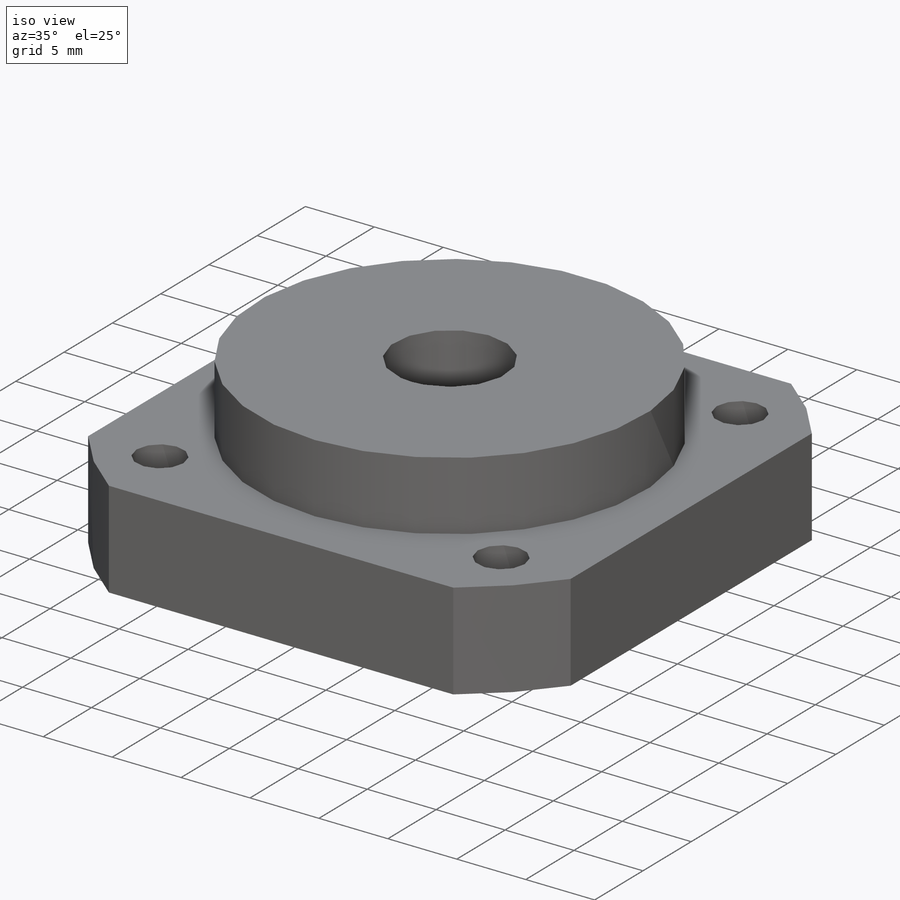
[diagram: iso view]
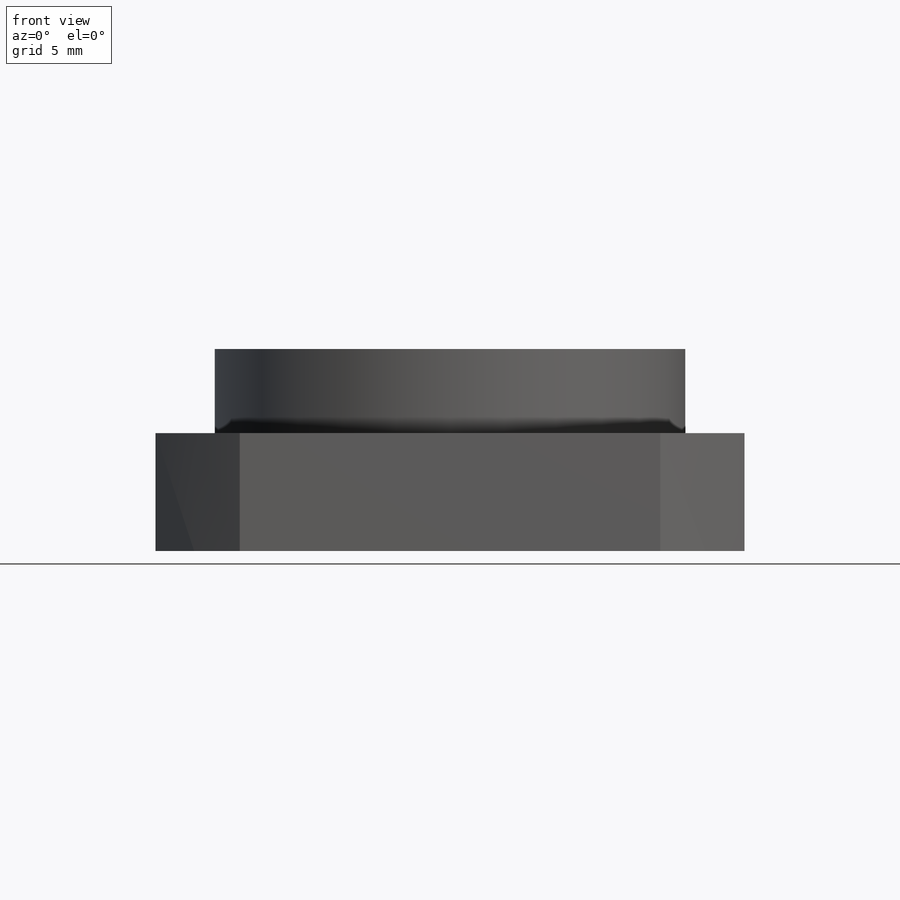
[diagram: front view]
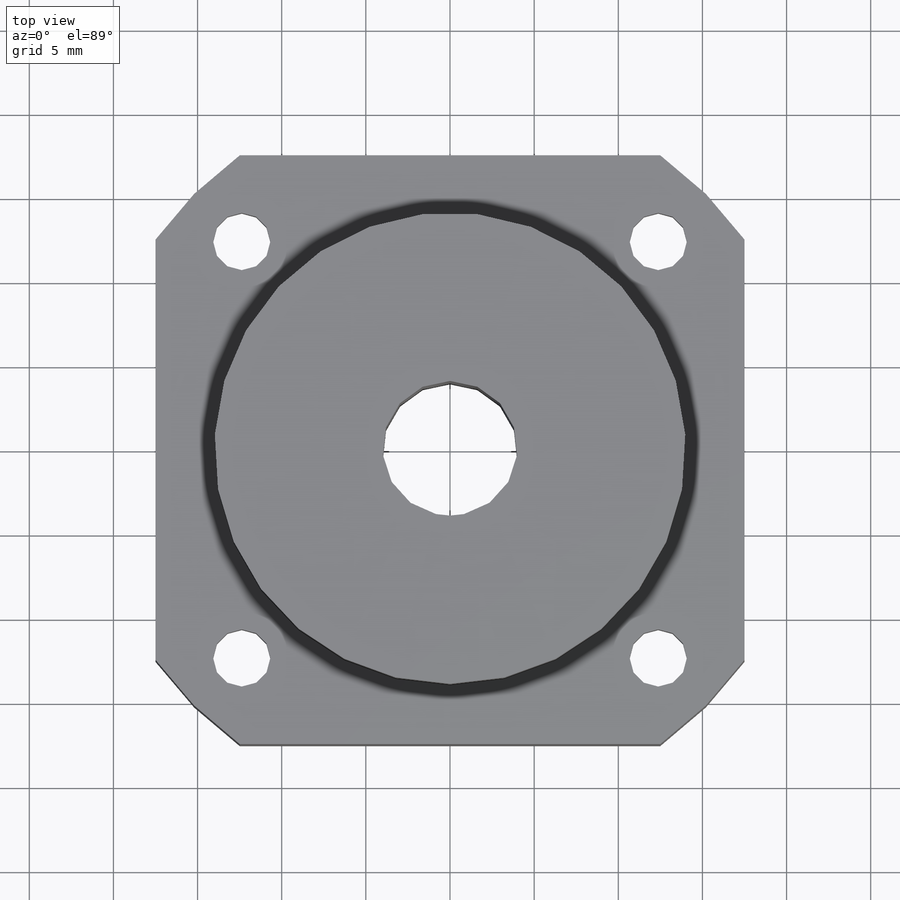
[diagram: top view]
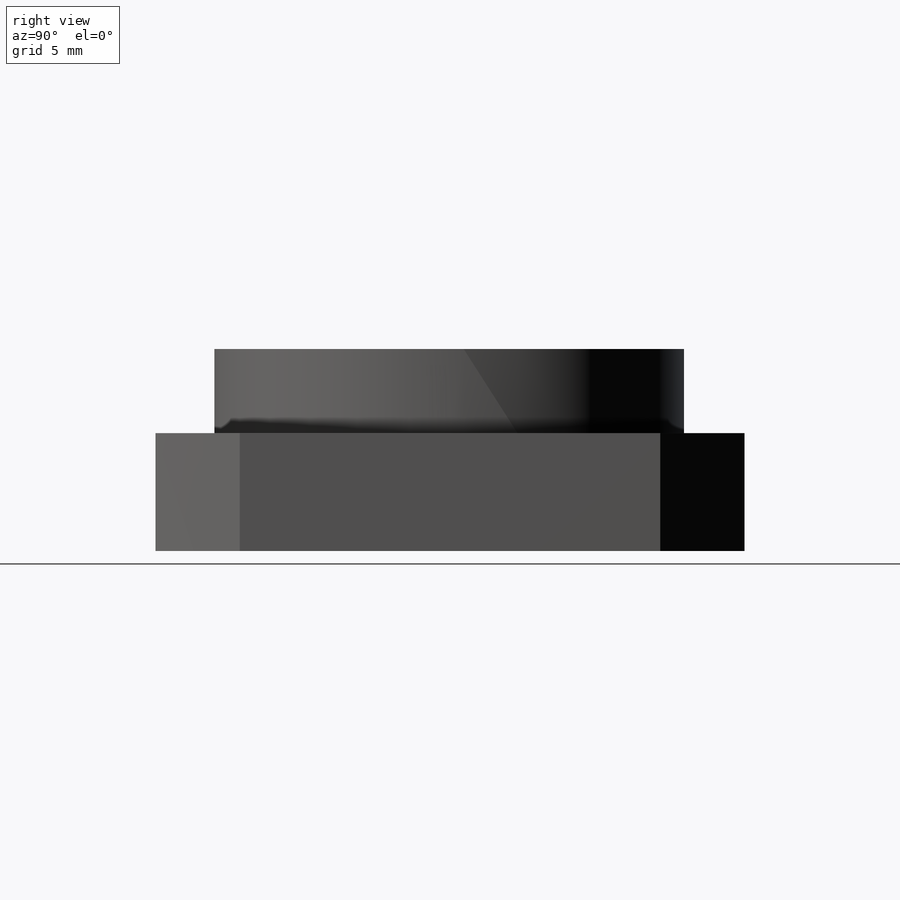
[diagram: right view]
SOLIDWORKS PART (.sldprt)
format: sldprt  version: not decoded by parser v0  size: 256,512 bytes
history: native  units: mm
features: plane x3, sketch x3, cut_extrude x2, material x1, extrude x1 (+9 scaffold rows collapsed)
feature tree (19):
  scaffold x9  (default folders/planes/origin — collapsed)
  material  "Материал <не указан>"
  plane  "Спереди"
  plane  "Сверху"
  plane  "Справа"
  sketch  "Эскиз5"  dims[c1.D2=8.0mm c1.D3=35.0mm c1.D4=3.4mm c1.D5=3.4mm c1.D6=3.4mm c1.D7=3.4mm c1.D8=43.0mm c1.D1=35.0mm c2.D2=35.0mm c2.D1=35.0mm]
  extrude  "Бобышка-Вытянуть2"  Depth=12mm
  sketch  "Эскиз7"  dims[c1.D1=28.0mm c1.D2=35.0mm c1.D3=35.0mm c2.D2=35.0mm]
  cut_extrude  "Вырез-Вытянуть4"  Depth=5mm
  sketch  "Эскиз8"  dims[D1=6.5mm D2=6.5mm D3=6.5mm D4=6.5mm]
  cut_extrude  "Вырез-Вытянуть5"  Depth=4mm
decode coverage: 6 of 6 modeling features carry decoded parameters
note: suppression state not decoded; provenance and decode notes live in map.json
